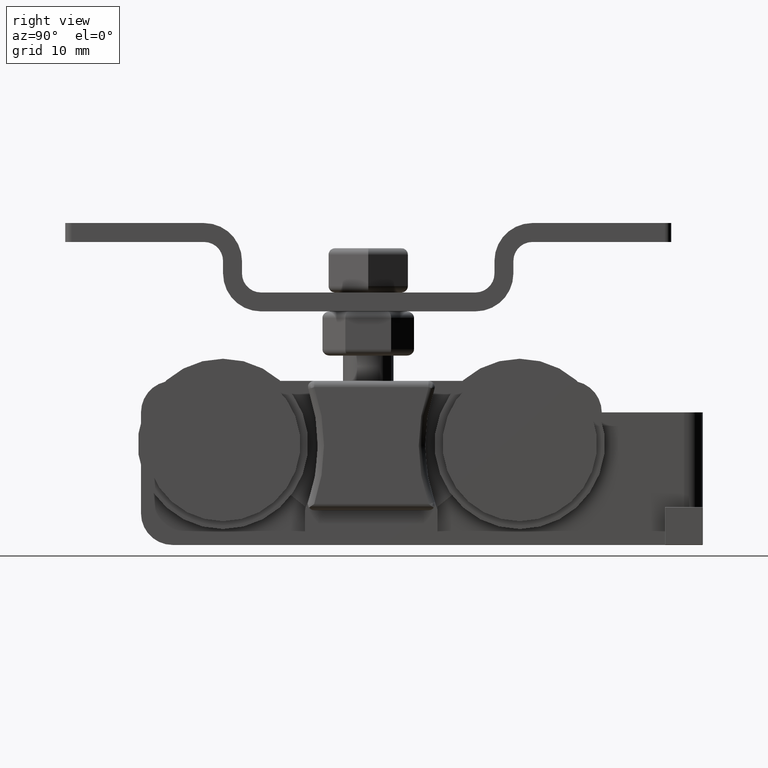
[diagram: clean part render]
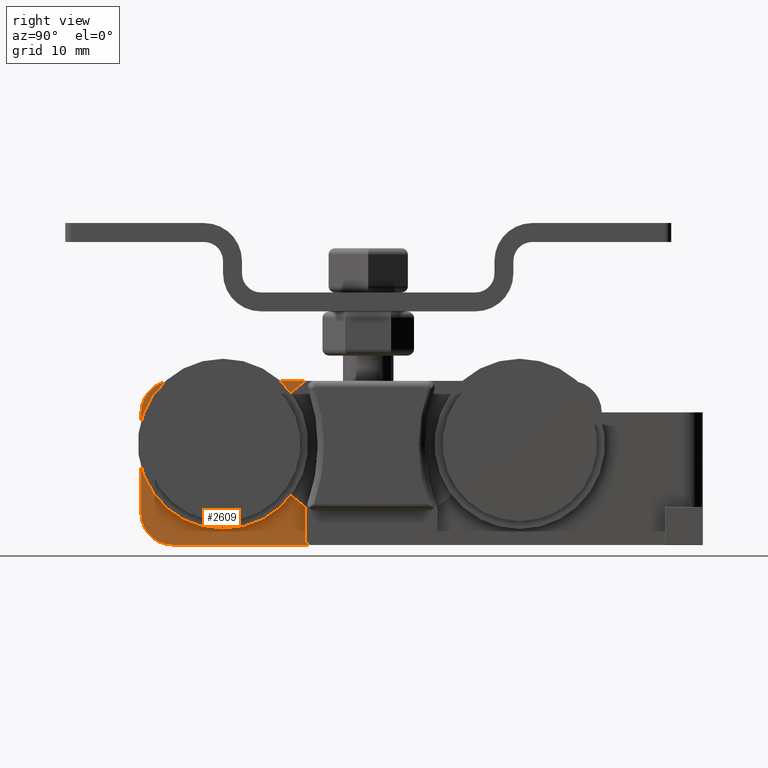
[diagram: same view with one face highlighted and labeled with its STEP entity id]
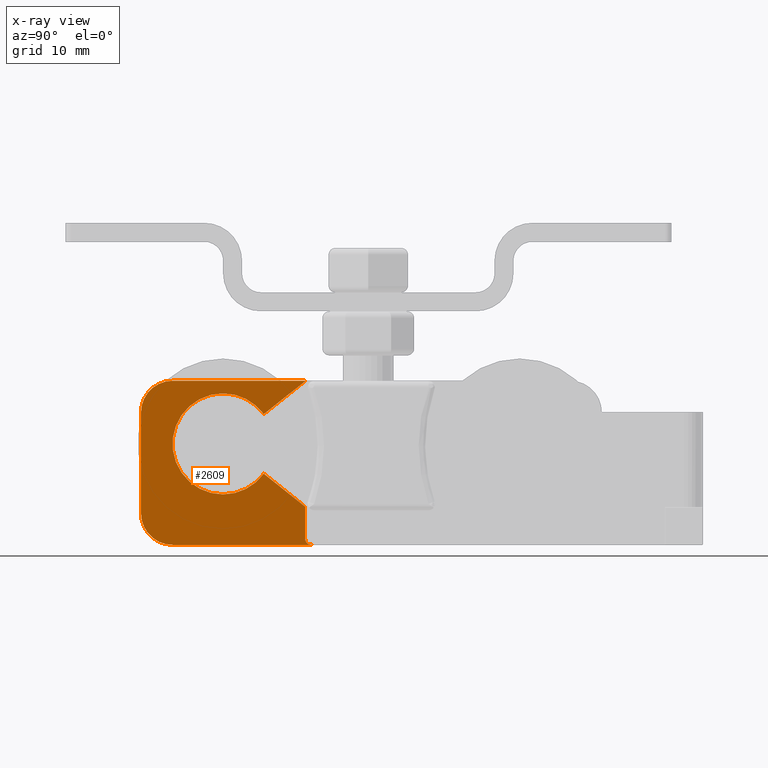
[diagram: x-ray of the same camera — body ghosted, the highlighted face saturated]
A machine part, right view. The second image highlights one B-rep face of the part: STEP entity #2609.
The next image is the same camera in x-ray: the body ghosted, the highlighted face saturated — about 0% of this face is hidden behind the body in this view.
In plain terms, the highlighted planar face has unit normal (-1, 0, 0).
Its self-contained STEP definition (entity closure, byte-faithful):
#166=CARTESIAN_POINT('',(3.000000000000007,-22.999999999999986,24.0));
#167=VERTEX_POINT('',#166);
#168=CARTESIAN_POINT('',(3.000000000000007,-16.544027192047388,20.724448655978478));
#169=VERTEX_POINT('',#168);
#170=CARTESIAN_POINT('',(3.000000000000007,-22.999999999999986,15.999999999999995));
#171=DIRECTION('',(-1.0,0.0,-6.123234E-017));
#172=DIRECTION('',(0.0,1.0,0.0));
#173=AXIS2_PLACEMENT_3D('',#170,#171,#172);
#174=CIRCLE('',#173,8.0);
#175=EDGE_CURVE('',#167,#169,#174,.T.);
#209=CARTESIAN_POINT('',(3.000000000000007,-22.999999999999986,7.999999999999996));
#210=VERTEX_POINT('',#209);
#211=CARTESIAN_POINT('',(3.000000000000007,-22.999999999999986,15.999999999999995));
#212=DIRECTION('',(-1.0,0.0,-6.123234E-017));
#213=DIRECTION('',(0.0,1.0,0.0));
#214=AXIS2_PLACEMENT_3D('',#211,#212,#213);
#215=CIRCLE('',#214,8.0);
#216=EDGE_CURVE('',#210,#167,#215,.T.);
#543=CARTESIAN_POINT('',(3.000000000000007,-9.999999999999986,6.063013683922328));
#544=VERTEX_POINT('',#543);
#551=CARTESIAN_POINT('',(3.000000000000007,-9.999999999999986,1.0));
#552=VERTEX_POINT('',#551);
#553=CARTESIAN_POINT('',(3.000000000000007,-9.999999999999986,1.0));
#554=DIRECTION('',(0.0,0.0,1.0));
#555=VECTOR('',#554,5.063013683922328);
#556=LINE('',#553,#555);
#557=EDGE_CURVE('',#552,#544,#556,.T.);
#901=CARTESIAN_POINT('',(3.000000000000007,-8.999999999999986,-6.871087E-016));
#902=VERTEX_POINT('',#901);
#909=CARTESIAN_POINT('',(3.000000000000007,-31.0,1.802531E-016));
#910=VERTEX_POINT('',#909);
#911=CARTESIAN_POINT('',(3.000000000000007,-31.0,-6.871087E-016));
#912=DIRECTION('',(0.0,1.0,0.0));
#913=VECTOR('',#912,22.000000000000018);
#914=LINE('',#911,#913);
#915=EDGE_CURVE('',#910,#902,#914,.T.);
#1119=CARTESIAN_POINT('',(3.000000000000007,-31.0,26.000000000000011));
#1120=VERTEX_POINT('',#1119);
#1127=CARTESIAN_POINT('',(3.000000000000007,-9.999999999999986,26.0));
#1128=VERTEX_POINT('',#1127);
#1129=CARTESIAN_POINT('',(3.000000000000007,-9.999999999999986,26.0));
#1130=DIRECTION('',(0.0,-1.0,0.0));
#1131=VECTOR('',#1130,21.000000000000014);
#1132=LINE('',#1129,#1131);
#1133=EDGE_CURVE('',#1128,#1120,#1132,.T.);
#1550=CARTESIAN_POINT('',(3.000000000000007,-35.999999999999972,21.0));
#1551=VERTEX_POINT('',#1550);
#1552=CARTESIAN_POINT('',(3.000000000000007,-36.0,5.000000000000001));
#1553=VERTEX_POINT('',#1552);
#1554=CARTESIAN_POINT('',(3.000000000000007,-36.0,21.0));
#1555=DIRECTION('',(0.0,0.0,-1.0));
#1556=VECTOR('',#1555,15.999999999999996);
#1557=LINE('',#1554,#1556);
#1558=EDGE_CURVE('',#1551,#1553,#1557,.T.);
#1677=CARTESIAN_POINT('',(3.000000000000007,-9.999999999999986,25.936986316077661));
#1678=VERTEX_POINT('',#1677);
#1679=CARTESIAN_POINT('',(3.000000000000007,-9.999999999999986,25.936986316077661));
#1680=DIRECTION('',(0.0,1.127601E-013,1.0));
#1681=VECTOR('',#1680,0.063013683922339);
#1682=LINE('',#1679,#1681);
#1683=EDGE_CURVE('',#1678,#1128,#1682,.T.);
#2082=CARTESIAN_POINT('',(3.000000000000007,-30.999999999999972,5.000000000000001));
#2083=DIRECTION('',(1.0,0.0,6.123234E-017));
#2084=DIRECTION('',(0.0,1.0,0.0));
#2085=AXIS2_PLACEMENT_3D('',#2082,#2083,#2084);
#2086=CIRCLE('',#2085,4.999999999999997);
#2087=EDGE_CURVE('',#1553,#910,#2086,.T.);
#2106=CARTESIAN_POINT('',(3.000000000000007,-30.999999999999972,21.0));
#2107=DIRECTION('',(1.0,0.0,6.123234E-017));
#2108=DIRECTION('',(0.0,1.0,0.0));
#2109=AXIS2_PLACEMENT_3D('',#2106,#2107,#2108);
#2110=CIRCLE('',#2109,4.999999999999997);
#2111=EDGE_CURVE('',#1120,#1551,#2110,.T.);
#2530=CARTESIAN_POINT('',(3.000000000000007,-16.544027192047388,11.275551344021535));
#2531=VERTEX_POINT('',#2530);
#2538=CARTESIAN_POINT('',(3.000000000000007,-9.999999999999986,6.063013683922328));
#2539=DIRECTION('',(-5.308077E-017,-0.782189677647274,0.623040374439774));
#2540=VECTOR('',#2539,8.366291935392185);
#2541=LINE('',#2538,#2540);
#2542=EDGE_CURVE('',#544,#2531,#2541,.T.);
#2554=CARTESIAN_POINT('',(3.000000000000007,-22.999999999999986,15.999999999999995));
#2555=DIRECTION('',(-1.0,0.0,-6.123234E-017));
#2556=DIRECTION('',(0.0,1.0,0.0));
#2557=AXIS2_PLACEMENT_3D('',#2554,#2555,#2556);
#2558=CIRCLE('',#2557,8.0);
#2559=EDGE_CURVE('',#2531,#210,#2558,.T.);
#2573=CARTESIAN_POINT('',(3.000000000000007,-16.544027192047380,20.724448655978470));
#2574=DIRECTION('',(-5.308077E-017,0.782189677647274,0.623040374439774));
#2575=VECTOR('',#2574,8.366291935392168);
#2576=LINE('',#2573,#2575);
#2577=EDGE_CURVE('',#169,#1678,#2576,.T.);
#2583=CARTESIAN_POINT('',(3.000000000000007,-37.350000000000001,-1.300000000000003));
#2584=DIRECTION('',(-1.0,0.0,0.0));
#2585=DIRECTION('',(0.0,0.0,1.0));
#2586=AXIS2_PLACEMENT_3D('',#2583,#2584,#2585);
#2587=PLANE('',#2586);
#2588=ORIENTED_EDGE('',*,*,#2542,.T.);
#2589=ORIENTED_EDGE('',*,*,#2559,.T.);
#2590=ORIENTED_EDGE('',*,*,#216,.T.);
#2591=ORIENTED_EDGE('',*,*,#175,.T.);
#2592=ORIENTED_EDGE('',*,*,#2577,.T.);
#2593=ORIENTED_EDGE('',*,*,#1683,.T.);
#2594=ORIENTED_EDGE('',*,*,#1133,.T.);
#2595=ORIENTED_EDGE('',*,*,#2111,.T.);
#2596=ORIENTED_EDGE('',*,*,#1558,.T.);
#2597=ORIENTED_EDGE('',*,*,#2087,.T.);
#2598=ORIENTED_EDGE('',*,*,#915,.T.);
#2599=CARTESIAN_POINT('',(3.000000000000007,-8.999999999999986,1.0));
#2600=DIRECTION('',(-1.0,0.0,-6.123234E-017));
#2601=DIRECTION('',(-6.123234E-017,0.0,1.0));
#2602=AXIS2_PLACEMENT_3D('',#2599,#2600,#2601);
#2603=CIRCLE('',#2602,1.0);
#2604=EDGE_CURVE('',#902,#552,#2603,.T.);
#2605=ORIENTED_EDGE('',*,*,#2604,.T.);
#2606=ORIENTED_EDGE('',*,*,#557,.T.);
#2607=EDGE_LOOP('',(#2588,#2589,#2590,#2591,#2592,#2593,#2594,#2595,#2596,#2597,#2598,#2605,#2606));
#2608=FACE_OUTER_BOUND('',#2607,.T.);
#2609=ADVANCED_FACE('',(#2608),#2587,.F.);